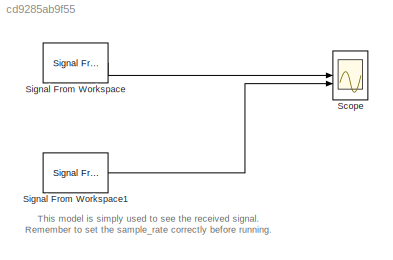
MODEL slx_cd9285ab9f55
KIND model
CONFIG AbsTol = auto
CONFIG EnableMultiTasking = off
CONFIG FixedStep = auto
CONFIG InitFcn = f = fopen('rxdma', 'rb');\nvalues = fread(f, Inf, 'int16');\nfclose(f);\n\nrx0dma = values(1:4:end) + values(2:4:end)*1i;\nrx1dma = values(3:4:end) + values(4:4:end)*1i;\n\n% Set this to 61.44e6 when capture high rate\n% Set this to 8 * BLF when capture RFID low rate\nsamp_rate = 0.32e6;\nsamp_time = 1 / samp_rate;\nstop_time = samp_time * length(rx0dma);\n
CONFIG MaxStep = auto
CONFIG MinStep = auto
CONFIG RelTol = 1e-3
CONFIG SampleTimeConstraint = Unconstrained
CONFIG SolverName = VariableStepAuto
CONFIG StartTime = 0.0
CONFIG StopTime = 3e6*samp_time
BLOCK [Scope] Scope
  Floating = off
  NumInputPorts = 2
  ScopeSpecificationString = Simulink.scopes.TimeScopeBlockCfg('CurrentConfiguration', extmgr.ConfigurationSet(extmgr.Configuration('Core','General UI',true),extmgr.Configuration('Core','Source UI',true),extmgr.Configuration('Sources','WiredSimulink',true),extmgr.Configuration('Visuals','Time Domain',true,'SerializedDisplays',{struct('MinYLimReal','-1.875','MaxYLimReal','16.875','YLabelReal','','MinYLimMag','0.00000','MaxYLim...<+2358ch>
BLOCK [Reference] Signal From Workspace  REF=dspsrcs4/Signal From
Workspace
  SourceBlock = dspsrcs4/Signal From\nWorkspace
  SourceType = Signal From Workspace
BLOCK [Reference] Signal From Workspace1  REF=dspsrcs4/Signal From
Workspace
  SourceBlock = dspsrcs4/Signal From\nWorkspace
  SourceType = Signal From Workspace
ANNOTATION (root): This model is simply used to see the received signal. Remember to set the sample_rate correctly before running.
LINE Signal From Workspace1:1 -> Scope:2
LINE Signal From Workspace:1 -> Scope:1
